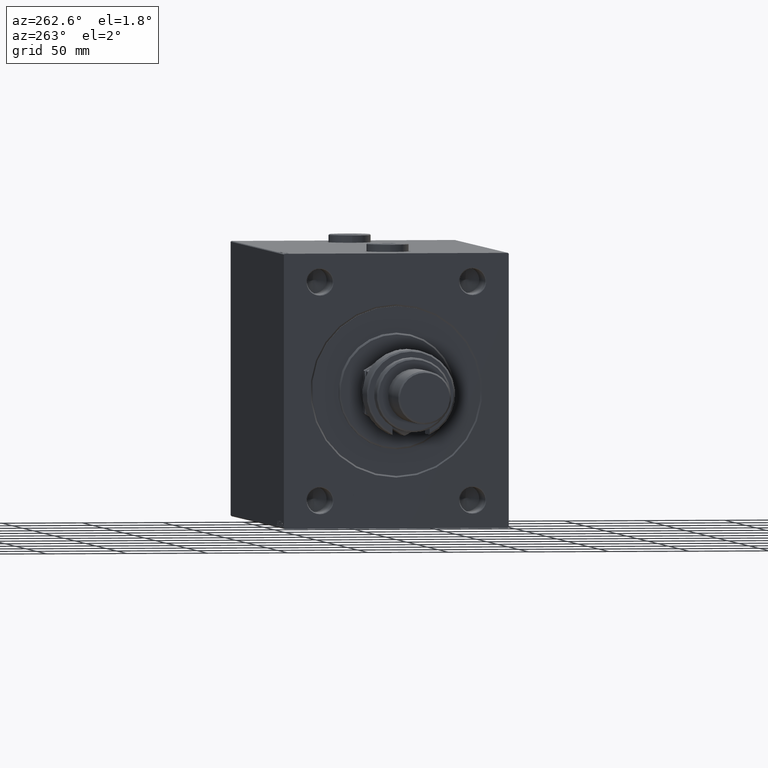
[diagram: clean part render]
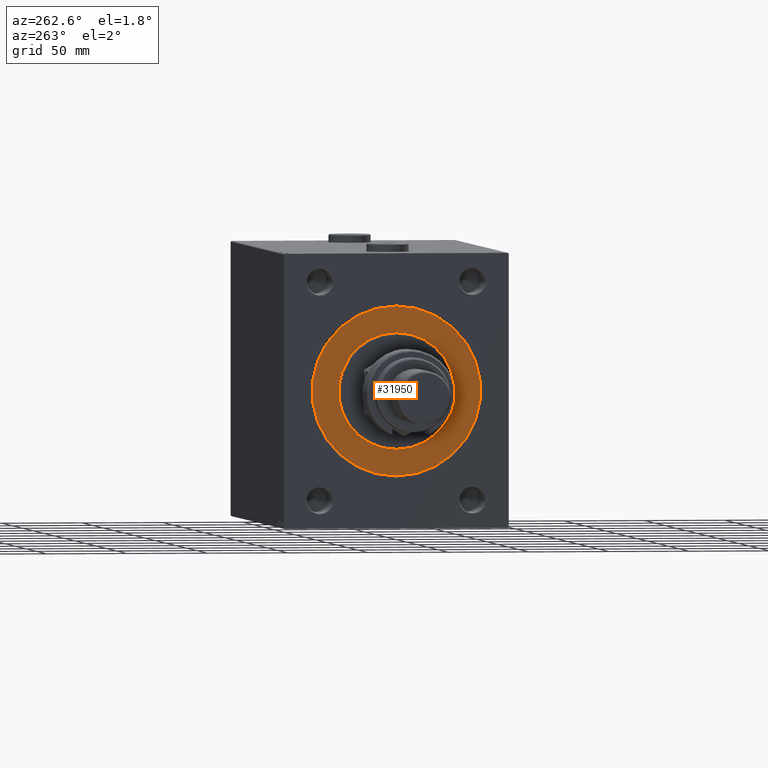
[diagram: same view with one face highlighted and labeled with its STEP entity id]
A machine part, auxiliary view. The second image highlights one B-rep face of the part: STEP entity #31950.
In plain terms, the highlighted planar face has unit normal (1, -0, -0).
Its self-contained STEP definition (entity closure, byte-faithful):
#520 = EDGE_CURVE ( 'NONE', #5571, #6197, #30685, .T. ) ;
#1196 = PLANE ( 'NONE',  #14704 ) ;
#1927 = FACE_OUTER_BOUND ( 'NONE', #27232, .T. ) ;
#1929 = EDGE_LOOP ( 'NONE', ( #26990, #21808 ) ) ;
#2683 = DIRECTION ( 'NONE',  ( 0.000000000000000000, 0.000000000000000000, -1.000000000000000000 ) ) ;
#3058 = EDGE_CURVE ( 'NONE', #28940, #42869, #9584, .T. ) ;
#5394 = CIRCLE ( 'NONE', #10075, 52.49999999999999289 ) ;
#5571 = VERTEX_POINT ( 'NONE', #35904 ) ;
#5829 = CIRCLE ( 'NONE', #34856, 36.00000000000000000 ) ;
#6197 = VERTEX_POINT ( 'NONE', #26517 ) ;
#6472 = DIRECTION ( 'NONE',  ( 0.000000000000000000, 0.000000000000000000, 1.000000000000000000 ) ) ;
#6615 = DIRECTION ( 'NONE',  ( 1.000000000000000000, -0.000000000000000000, 0.000000000000000000 ) ) ;
#8266 = ORIENTED_EDGE ( 'NONE', *, *, #33634, .F. ) ;
#9584 = CIRCLE ( 'NONE', #44144, 36.00000000000000000 ) ;
#10075 = AXIS2_PLACEMENT_3D ( 'NONE', #12124, #13105, #6472 ) ;
#12124 = CARTESIAN_POINT ( 'NONE',  ( 0.000000000000000000, 0.000000000000000000, 0.000000000000000000 ) ) ;
#12243 = DIRECTION ( 'NONE',  ( 0.000000000000000000, 0.000000000000000000, 1.000000000000000000 ) ) ;
#12505 = CARTESIAN_POINT ( 'NONE',  ( 0.000000000000000000, 0.000000000000000000, 36.00000000000000000 ) ) ;
#12730 = CARTESIAN_POINT ( 'NONE',  ( 0.000000000000000000, 0.000000000000000000, 0.000000000000000000 ) ) ;
#13105 = DIRECTION ( 'NONE',  ( -1.000000000000000000, 0.000000000000000000, 0.000000000000000000 ) ) ;
#14704 = AXIS2_PLACEMENT_3D ( 'NONE', #12730, #20365, #12243 ) ;
#14844 = DIRECTION ( 'NONE',  ( -1.000000000000000000, 0.000000000000000000, 0.000000000000000000 ) ) ;
#18531 = CARTESIAN_POINT ( 'NONE',  ( 0.000000000000000000, 0.000000000000000000, 0.000000000000000000 ) ) ;
#19270 = DIRECTION ( 'NONE',  ( 0.000000000000000000, 0.000000000000000000, 1.000000000000000000 ) ) ;
#20334 = EDGE_CURVE ( 'NONE', #42869, #28940, #5829, .T. ) ;
#20365 = DIRECTION ( 'NONE',  ( -1.000000000000000000, 0.000000000000000000, 0.000000000000000000 ) ) ;
#21808 = ORIENTED_EDGE ( 'NONE', *, *, #20334, .F. ) ;
#26042 = CARTESIAN_POINT ( 'NONE',  ( 0.000000000000000000, 4.408728476930470856E-15, -36.00000000000000000 ) ) ;
#26517 = CARTESIAN_POINT ( 'NONE',  ( 0.000000000000000000, 0.000000000000000000, -52.49999999999999289 ) ) ;
#26990 = ORIENTED_EDGE ( 'NONE', *, *, #3058, .F. ) ;
#27232 = EDGE_LOOP ( 'NONE', ( #8266, #47689 ) ) ;
#28940 = VERTEX_POINT ( 'NONE', #12505 ) ;
#29165 = DIRECTION ( 'NONE',  ( 1.000000000000000000, -0.000000000000000000, 0.000000000000000000 ) ) ;
#30685 = CIRCLE ( 'NONE', #47204, 52.49999999999999289 ) ;
#31950 = ADVANCED_FACE ( 'NONE', ( #46419, #1927 ), #1196, .F. ) ;
#33634 = EDGE_CURVE ( 'NONE', #6197, #5571, #5394, .T. ) ;
#34856 = AXIS2_PLACEMENT_3D ( 'NONE', #40022, #6615, #2683 ) ;
#35904 = CARTESIAN_POINT ( 'NONE',  ( 0.000000000000000000, 6.429395695523603167E-15, 52.49999999999999289 ) ) ;
#36785 = CARTESIAN_POINT ( 'NONE',  ( 0.000000000000000000, 0.000000000000000000, 0.000000000000000000 ) ) ;
#40022 = CARTESIAN_POINT ( 'NONE',  ( 0.000000000000000000, 0.000000000000000000, 0.000000000000000000 ) ) ;
#42869 = VERTEX_POINT ( 'NONE', #26042 ) ;
#44144 = AXIS2_PLACEMENT_3D ( 'NONE', #36785, #29165, #44170 ) ;
#44170 = DIRECTION ( 'NONE',  ( 0.000000000000000000, 0.000000000000000000, -1.000000000000000000 ) ) ;
#46419 = FACE_BOUND ( 'NONE', #1929, .T. ) ;
#47204 = AXIS2_PLACEMENT_3D ( 'NONE', #18531, #14844, #19270 ) ;
#47689 = ORIENTED_EDGE ( 'NONE', *, *, #520, .F. ) ;